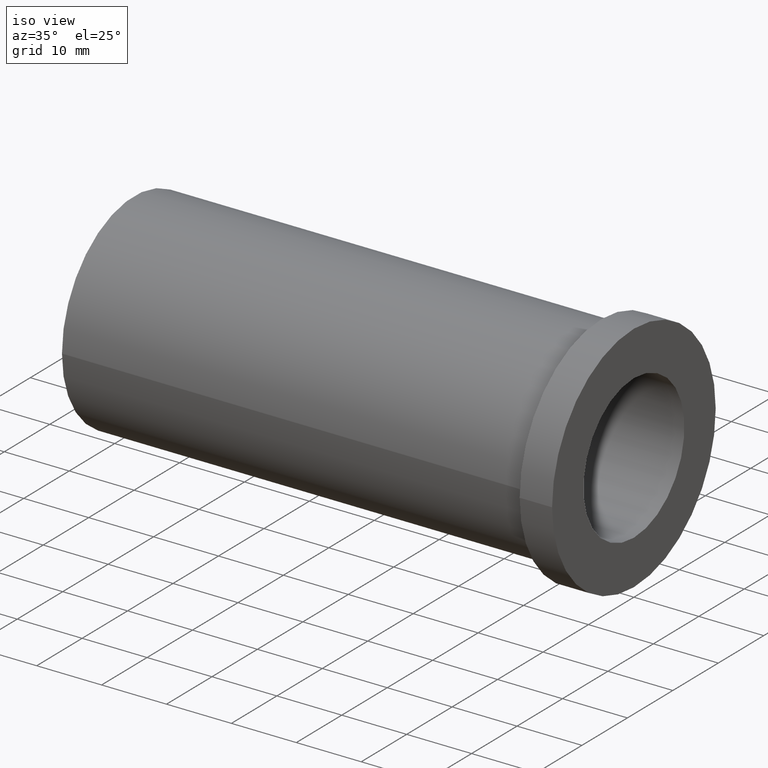
[diagram: clean part render]
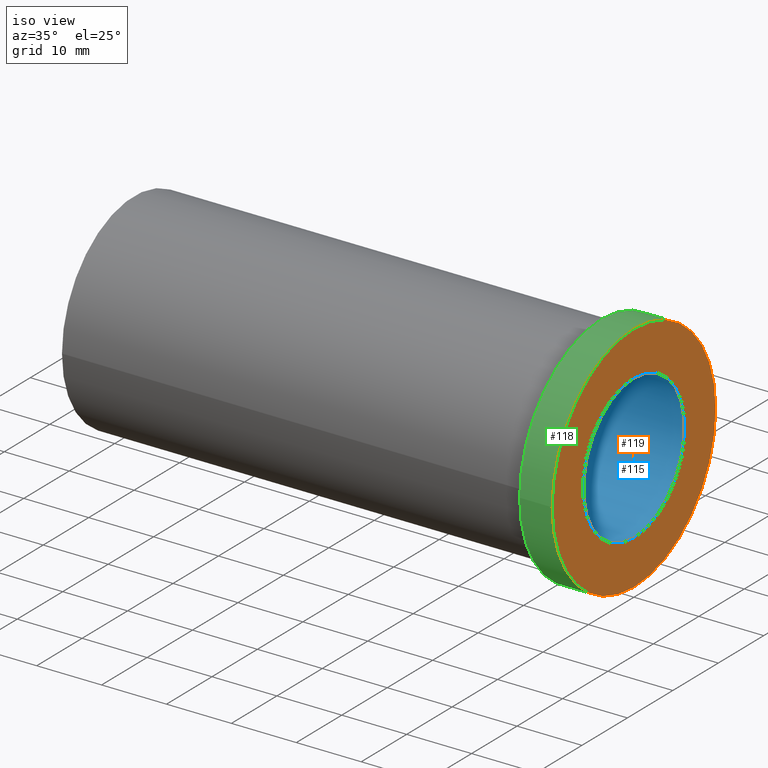
[diagram: same view with three faces highlighted in distinct colors, each labeled with its STEP entity id]
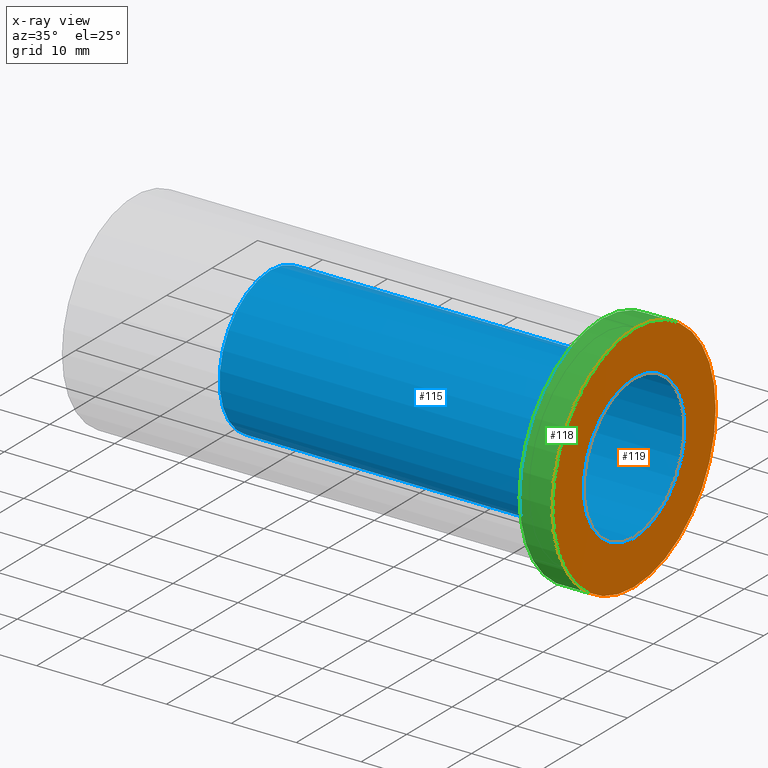
[diagram: x-ray of the same camera — body ghosted, the three highlighted faces saturated]
A machine part, iso view with three faces highlighted in distinct colors.
The next image is the same camera in x-ray (body ghosted, the three faces saturated) — at least one of them is partly hidden behind the body in this view.
Their STEP definitions:

[orange] entity #119 — the highlighted planar face has unit normal (1, 0, 0).
#15=FACE_BOUND('',#35,.T.);
#18=PLANE('',#157);
#26=FACE_OUTER_BOUND('',#34,.T.);
#34=EDGE_LOOP('',(#101));
#35=EDGE_LOOP('',(#102));
#51=CIRCLE('',#147,11.1125);
#56=CIRCLE('',#155,18.);
#60=VERTEX_POINT('',#206);
#65=VERTEX_POINT('',#222);
#69=EDGE_CURVE('',#60,#60,#51,.T.);
#77=EDGE_CURVE('',#65,#65,#56,.T.);
#101=ORIENTED_EDGE('',*,*,#77,.T.);
#102=ORIENTED_EDGE('',*,*,#69,.T.);
#119=ADVANCED_FACE('',(#26,#15),#18,.T.);
#147=AXIS2_PLACEMENT_3D('',#207,#167,#168);
#155=AXIS2_PLACEMENT_3D('',#223,#186,#187);
#157=AXIS2_PLACEMENT_3D('',#227,#191,#192);
#167=DIRECTION('center_axis',(-1.,0.,0.));
#168=DIRECTION('ref_axis',(0.,0.,-1.));
#186=DIRECTION('center_axis',(1.,0.,0.));
#187=DIRECTION('ref_axis',(0.,0.,-1.));
#191=DIRECTION('center_axis',(1.,0.,0.));
#192=DIRECTION('ref_axis',(0.,0.,-1.));
#206=CARTESIAN_POINT('',(0.,-1.3608887555525E-15,11.1125));
#207=CARTESIAN_POINT('Origin',(0.,0.,0.));
#222=CARTESIAN_POINT('',(5.55111512312578E-15,-18.,-2.20436423846524E-15));
#223=CARTESIAN_POINT('Origin',(5.55111512312578E-15,0.,0.));
#227=CARTESIAN_POINT('Origin',(1.24504562061398E-31,2.26081779560032E-14,
0.));

[blue] entity #115 — the highlighted cylindrical surface (bore or boss wall) has radius 11.1125 mm, axis along (1, 0, 0).
#22=FACE_OUTER_BOUND('',#30,.T.);
#30=EDGE_LOOP('',(#83,#84,#85,#86,#87));
#41=LINE('',#209,#46);
#46=VECTOR('',#169,11.1125);
#51=CIRCLE('',#147,11.1125);
#52=CIRCLE('',#148,11.1125);
#53=CIRCLE('',#149,11.1125);
#60=VERTEX_POINT('',#206);
#61=VERTEX_POINT('',#208);
#62=VERTEX_POINT('',#210);
#69=EDGE_CURVE('',#60,#60,#51,.T.);
#70=EDGE_CURVE('',#60,#61,#41,.T.);
#71=EDGE_CURVE('',#62,#61,#52,.T.);
#72=EDGE_CURVE('',#61,#62,#53,.T.);
#83=ORIENTED_EDGE('',*,*,#69,.F.);
#84=ORIENTED_EDGE('',*,*,#70,.T.);
#85=ORIENTED_EDGE('',*,*,#71,.F.);
#86=ORIENTED_EDGE('',*,*,#72,.F.);
#87=ORIENTED_EDGE('',*,*,#70,.F.);
#111=CYLINDRICAL_SURFACE('',#146,11.1125);
#115=ADVANCED_FACE('',(#22),#111,.F.);
#146=AXIS2_PLACEMENT_3D('',#205,#165,#166);
#147=AXIS2_PLACEMENT_3D('',#207,#167,#168);
#148=AXIS2_PLACEMENT_3D('',#211,#170,#171);
#149=AXIS2_PLACEMENT_3D('',#212,#172,#173);
#165=DIRECTION('center_axis',(1.,0.,0.));
#166=DIRECTION('ref_axis',(0.,0.,-1.));
#167=DIRECTION('center_axis',(-1.,0.,0.));
#168=DIRECTION('ref_axis',(0.,0.,-1.));
#169=DIRECTION('',(-1.,0.,0.));
#170=DIRECTION('center_axis',(1.,0.,0.));
#171=DIRECTION('ref_axis',(0.,0.,-1.));
#172=DIRECTION('center_axis',(1.,0.,0.));
#173=DIRECTION('ref_axis',(0.,0.,-1.));
#205=CARTESIAN_POINT('Origin',(-92.3092628071528,0.,0.));
#206=CARTESIAN_POINT('',(0.,-1.3608887555525E-15,11.1125));
#207=CARTESIAN_POINT('Origin',(0.,0.,0.));
#208=CARTESIAN_POINT('',(-56.0532834077996,-1.3608887555525E-15,11.1125));
#209=CARTESIAN_POINT('',(-92.3092628071528,-1.3608887555525E-15,11.1125));
#210=CARTESIAN_POINT('',(-56.0532834077996,-1.3608887555525E-15,-11.1125));
#211=CARTESIAN_POINT('Origin',(-56.0532834077996,0.,0.));
#212=CARTESIAN_POINT('Origin',(-56.0532834077996,0.,0.));

[green] entity #118 — the highlighted cylindrical surface (bore or boss wall) has radius 18 mm, axis along (1, 0, 0).
#25=FACE_OUTER_BOUND('',#33,.T.);
#33=EDGE_LOOP('',(#97,#98,#99,#100));
#44=LINE('',#225,#49);
#49=VECTOR('',#188,18.);
#56=CIRCLE('',#155,18.);
#57=CIRCLE('',#156,18.);
#65=VERTEX_POINT('',#222);
#66=VERTEX_POINT('',#224);
#77=EDGE_CURVE('',#65,#65,#56,.T.);
#78=EDGE_CURVE('',#65,#66,#44,.T.);
#79=EDGE_CURVE('',#66,#66,#57,.T.);
#97=ORIENTED_EDGE('',*,*,#77,.F.);
#98=ORIENTED_EDGE('',*,*,#78,.T.);
#99=ORIENTED_EDGE('',*,*,#79,.T.);
#100=ORIENTED_EDGE('',*,*,#78,.F.);
#113=CYLINDRICAL_SURFACE('',#154,18.);
#118=ADVANCED_FACE('',(#25),#113,.T.);
#154=AXIS2_PLACEMENT_3D('',#221,#184,#185);
#155=AXIS2_PLACEMENT_3D('',#223,#186,#187);
#156=AXIS2_PLACEMENT_3D('',#226,#189,#190);
#184=DIRECTION('center_axis',(1.,0.,0.));
#185=DIRECTION('ref_axis',(0.,1.,0.));
#186=DIRECTION('center_axis',(1.,0.,0.));
#187=DIRECTION('ref_axis',(0.,0.,-1.));
#188=DIRECTION('',(-1.,0.,0.));
#189=DIRECTION('center_axis',(1.,0.,0.));
#190=DIRECTION('ref_axis',(0.,0.,-1.));
#221=CARTESIAN_POINT('Origin',(-2.49999999999999,0.,0.));
#222=CARTESIAN_POINT('',(5.55111512312578E-15,-18.,-2.20436423846524E-15));
#223=CARTESIAN_POINT('Origin',(5.55111512312578E-15,0.,0.));
#224=CARTESIAN_POINT('',(-4.99999999999999,-18.,-2.20436423846524E-15));
#225=CARTESIAN_POINT('',(-2.49999999999999,-18.,-2.20436423846524E-15));
#226=CARTESIAN_POINT('Origin',(-4.99999999999999,0.,0.));